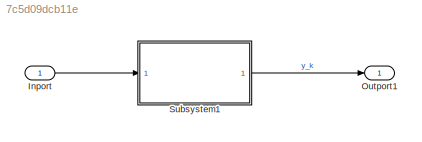
MODEL slx_7c5d09dcb11e
KIND model
CONFIG AbsTol = auto
CONFIG EnableMultiTasking = off
CONFIG FixedStep = auto
CONFIG MaxStep = auto
CONFIG MinStep = auto
CONFIG RelTol = 1e-3
CONFIG SampleTimeConstraint = Unconstrained
CONFIG SolverName = VariableStepAuto
CONFIG StartTime = 0.0
CONFIG StopTime = 10.0
BLOCK [Inport] Inport
  OutDataTypeStr = double
  PortDimensions = 1
  SampleTime = 0
  SamplingMode = Sample based
  SignalType = real
BLOCK [Outport] Outport1
  OutDataTypeStr = double
  PortDimensions = 1
  SampleTime = 0
  SamplingMode = Sample based
  SignalType = real
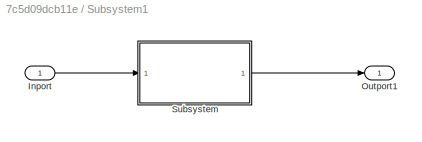
BLOCK [SubSystem] Subsystem1
  Ports = [1, 1]
  RequestExecContextInheritance = off
  TreatAsAtomicUnit = on
BLOCK [Inport] Subsystem1/Inport
BLOCK [Outport] Subsystem1/Outport1
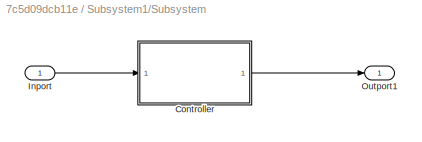
BLOCK [SubSystem] Subsystem1/Subsystem
  Ports = [1, 1]
  RequestExecContextInheritance = off
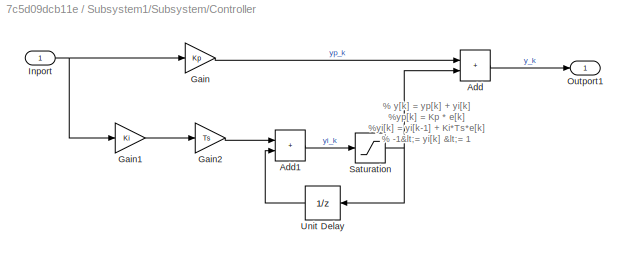
BLOCK [SubSystem] Subsystem1/Subsystem/Controller
  Ports = [1, 1]
  RequestExecContextInheritance = off
  TreatAsAtomicUnit = on
BLOCK [Sum] Subsystem1/Subsystem/Controller/Add
  IconShape = rectangular
  Ports = [2, 1]
BLOCK [Sum] Subsystem1/Subsystem/Controller/Add1
  IconShape = rectangular
  Ports = [2, 1]
BLOCK [Gain] Subsystem1/Subsystem/Controller/Gain
  Gain = Kp
BLOCK [Gain] Subsystem1/Subsystem/Controller/Gain1
  Gain = Ki
BLOCK [Gain] Subsystem1/Subsystem/Controller/Gain2
  Gain = Ts
BLOCK [Inport] Subsystem1/Subsystem/Controller/Inport
BLOCK [Outport] Subsystem1/Subsystem/Controller/Outport1
BLOCK [Saturate] Subsystem1/Subsystem/Controller/Saturation
  LowerLimit = -1
  UpperLimit = 1
BLOCK [UnitDelay] Subsystem1/Subsystem/Controller/Unit Delay
  HasFrameUpgradeWarning = on
  NameLocation = top
  SampleTime = -1
BLOCK [Inport] Subsystem1/Subsystem/Inport
BLOCK [Outport] Subsystem1/Subsystem/Outport1
ANNOTATION Subsystem1/Subsystem/Controller: % y[k] = yp[k] + yi[k] %yp[k] = Kp * e[k] %yi[k] = yi[k-1] + Ki*Ts*e[k] % -1<= yi[k] <= 1
LINE Inport:1 -> Subsystem1:1
LINE Subsystem1/Inport:1 -> Subsystem1/Subsystem:1
LINE Subsystem1/Subsystem/Controller/Add1:1 -> Subsystem1/Subsystem/Controller/Saturation:1
LINE Subsystem1/Subsystem/Controller/Add:1 -> Subsystem1/Subsystem/Controller/Outport1:1
LINE Subsystem1/Subsystem/Controller/Gain1:1 -> Subsystem1/Subsystem/Controller/Gain2:1
LINE Subsystem1/Subsystem/Controller/Gain2:1 -> Subsystem1/Subsystem/Controller/Add1:1
LINE Subsystem1/Subsystem/Controller/Gain:1 -> Subsystem1/Subsystem/Controller/Add:1
NET Subsystem1/Subsystem/Controller/Inport:1 -> Subsystem1/Subsystem/Controller/Gain1:1, Subsystem1/Subsystem/Controller/Gain:1
NET Subsystem1/Subsystem/Controller/Saturation:1 -> Subsystem1/Subsystem/Controller/Add:2, Subsystem1/Subsystem/Controller/Unit Delay:1
LINE Subsystem1/Subsystem/Controller/Unit Delay:1 -> Subsystem1/Subsystem/Controller/Add1:2
LINE Subsystem1/Subsystem/Controller:1 -> Subsystem1/Subsystem/Outport1:1
LINE Subsystem1/Subsystem/Inport:1 -> Subsystem1/Subsystem/Controller:1
LINE Subsystem1/Subsystem:1 -> Subsystem1/Outport1:1
LINE Subsystem1:1 -> Outport1:1
note: NET lines group one-source signal fan-out (src -> all destinations, sorted); 1:1 wires keep LINE
